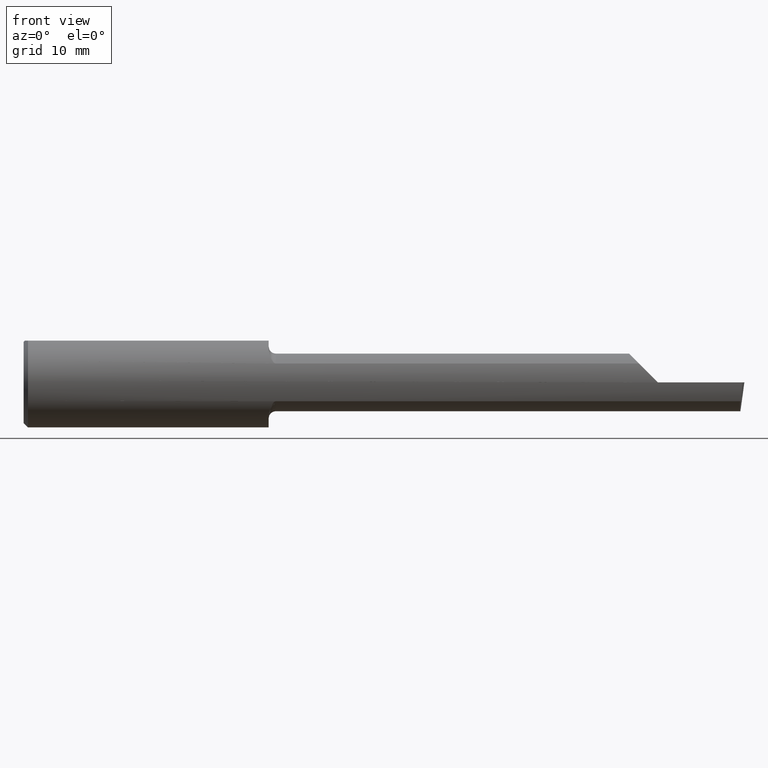
[diagram: clean part render]
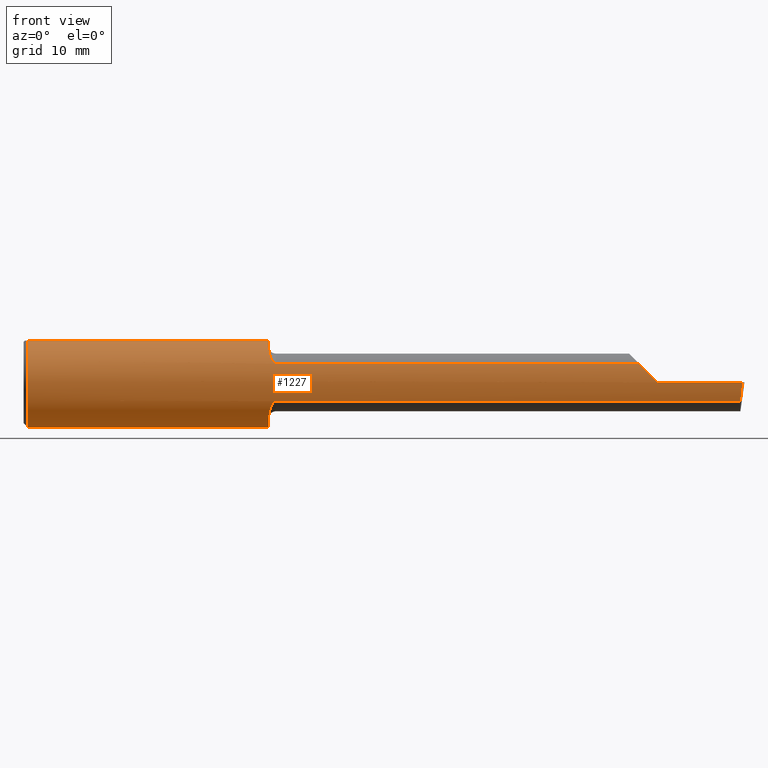
[diagram: same view with one face highlighted and labeled with its STEP entity id]
A machine part, front view. The second image highlights one B-rep face of the part: STEP entity #1227.
In plain terms, the highlighted cylindrical surface (partial cylindrical patch) has radius 3.9649 mm, axis along (-1, -0, -0).
Its self-contained STEP definition (entity closure, byte-faithful):
#29 = DIRECTION ( 'NONE',  ( 0.000000000000000000, 0.000000000000000000, -1.000000000000000000 ) ) ;
#32 = CARTESIAN_POINT ( 'NONE',  ( 21.62986463659906988, -3.000605534502818639, -2.611659286570838567 ) ) ;
#35 = CYLINDRICAL_SURFACE ( 'NONE', #1034, 3.964939999999999465 ) ;
#57 = EDGE_CURVE ( 'NONE', #655, #563, #652, .T. ) ;
#59 = CIRCLE ( 'NONE', #759, 3.964939999999999465 ) ;
#72 = VERTEX_POINT ( 'NONE', #176 ) ;
#73 = CARTESIAN_POINT ( 'NONE',  ( 63.50000000000000000, 1.462034237629201039, 3.685539999999999150 ) ) ;
#77 = VERTEX_POINT ( 'NONE', #200 ) ;
#82 = CARTESIAN_POINT ( 'NONE',  ( 39.11599999999999966, -3.599887049924355154, -1.661794942640913098 ) ) ;
#84 = VERTEX_POINT ( 'NONE', #558 ) ;
#88 = AXIS2_PLACEMENT_3D ( 'NONE', #378, #388, #294 ) ;
#89 = ORIENTED_EDGE ( 'NONE', *, *, #198, .T. ) ;
#111 = CARTESIAN_POINT ( 'NONE',  ( 21.59000000000000341, 1.462034237629201039, 3.685539999999999150 ) ) ;
#116 = CARTESIAN_POINT ( 'NONE',  ( 54.74300171423059425, -3.840973355998292149, 1.139538285769383430 ) ) ;
#124 = CARTESIAN_POINT ( 'NONE',  ( 55.88000000000000256, -3.964939186418879213, 0.002539999999978843903 ) ) ;
#142 = CARTESIAN_POINT ( 'NONE',  ( 63.34737096957299229, -3.964939999999998577, -1.734723475976807094E-15 ) ) ;
#144 = VERTEX_POINT ( 'NONE', #111 ) ;
#164 = ORIENTED_EDGE ( 'NONE', *, *, #1149, .F. ) ;
#168 = EDGE_CURVE ( 'NONE', #72, #563, #334, .T. ) ;
#176 = CARTESIAN_POINT ( 'NONE',  ( 21.59000000000000341, -2.519138184568832983, -3.061811883615197072 ) ) ;
#180 = CARTESIAN_POINT ( 'NONE',  ( 21.92013817098803585, -3.482913605042309957, 1.896197172601131298 ) ) ;
#183 = DIRECTION ( 'NONE',  ( -1.000000000000000000, -0.000000000000000000, -0.000000000000000000 ) ) ;
#187 = VERTEX_POINT ( 'NONE', #402 ) ;
#188 = CARTESIAN_POINT ( 'NONE',  ( 21.60086488926297932, -2.769437744535206303, 2.842117441750147577 ) ) ;
#189 = EDGE_CURVE ( 'NONE', #858, #459, #59, .T. ) ;
#194 = ORIENTED_EDGE ( 'NONE', *, *, #920, .F. ) ;
#195 = CARTESIAN_POINT ( 'NONE',  ( 21.59000000000000341, -2.647704699856520349, 2.956032420268236649 ) ) ;
#198 = EDGE_CURVE ( 'NONE', #368, #187, #1070, .T. ) ;
#200 = CARTESIAN_POINT ( 'NONE',  ( 21.59000000000000341, -2.519138184568832983, 3.061811883615197072 ) ) ;
#232 = EDGE_CURVE ( 'NONE', #84, #187, #1085, .T. ) ;
#243 = ORIENTED_EDGE ( 'NONE', *, *, #826, .T. ) ;
#254 = CIRCLE ( 'NONE', #949, 3.964939999999999465 ) ;
#264 = CARTESIAN_POINT ( 'NONE',  ( 63.50000000000000000, -3.964939999999998577, -8.673617379884035472E-16 ) ) ;
#294 = DIRECTION ( 'NONE',  ( 0.000000000000000000, 0.000000000000000000, 1.000000000000000000 ) ) ;
#298 = CARTESIAN_POINT ( 'NONE',  ( 22.14209333977408178, -3.593173028997537433, 1.676424154804802447 ) ) ;
#300 = DIRECTION ( 'NONE',  ( 1.000000000000000000, 0.000000000000000000, 0.000000000000000000 ) ) ;
#302 = VECTOR ( 'NONE', #183, 1000.000000000000000 ) ;
#329 = CARTESIAN_POINT ( 'NONE',  ( 54.22074505735906769, -3.599887049924353821, 1.661794942640917094 ) ) ;
#334 = B_SPLINE_CURVE_WITH_KNOTS ( 'NONE', 3,
 ( #974, #897, #32, #498, #884, #990, #1064, #875, #599, #423, #526, #983 ),
 .UNSPECIFIED., .F., .F.,
 ( 4, 2, 2, 2, 2, 4 ),
 ( 0.000000000000000000, 0.0009854161110805824755, 0.001478124166620874147, 0.001724478194391019766, 0.001847655208276092684, 0.001970832222161165818 ),
 .UNSPECIFIED. ) ;
#353 = VERTEX_POINT ( 'NONE', #142 ) ;
#368 = VERTEX_POINT ( 'NONE', #732 ) ;
#371 = EDGE_CURVE ( 'NONE', #655, #353, #861, .T. ) ;
#378 = CARTESIAN_POINT ( 'NONE',  ( 55.88000000000000256, 0.000000000000000000, 0.000000000000000000 ) ) ;
#388 = DIRECTION ( 'NONE',  ( -1.000000000000000000, -0.000000000000000000, -0.000000000000000000 ) ) ;
#402 = CARTESIAN_POINT ( 'NONE',  ( 54.22074505735906769, -3.599887049924353821, 1.661794942640917094 ) ) ;
#419 = VERTEX_POINT ( 'NONE', #1103 ) ;
#420 = DIRECTION ( 'NONE',  ( -1.000000000000000000, -0.000000000000000000, -0.000000000000000000 ) ) ;
#423 = CARTESIAN_POINT ( 'NONE',  ( 22.14223186210839955, -3.593202679785876708, -1.676360523546626791 ) ) ;
#427 = DIRECTION ( 'NONE',  ( 0.000000000000000000, 0.000000000000000000, 1.000000000000000000 ) ) ;
#433 = FACE_OUTER_BOUND ( 'NONE', #767, .T. ) ;
#453 = CARTESIAN_POINT ( 'NONE',  ( 63.22088425362750996, -3.841336638864744746, -1.138751319066783063 ) ) ;
#459 = VERTEX_POINT ( 'NONE', #1042 ) ;
#474 = CARTESIAN_POINT ( 'NONE',  ( 22.22500000000000497, -3.599887049924355154, 1.661794942640912653 ) ) ;
#498 = CARTESIAN_POINT ( 'NONE',  ( 21.75735470549299677, -3.287133544512903072, -2.222929241776085085 ) ) ;
#504 = CARTESIAN_POINT ( 'NONE',  ( 0.3809999999999924558, 0.000000000000000000, 0.000000000000000000 ) ) ;
#511 = CARTESIAN_POINT ( 'NONE',  ( 63.50000000000000000, 0.000000000000000000, 0.000000000000000000 ) ) ;
#515 = ORIENTED_EDGE ( 'NONE', *, *, #854, .T. ) ;
#525 = DIRECTION ( 'NONE',  ( 1.000000000000000000, 0.000000000000000000, 0.000000000000000000 ) ) ;
#526 = CARTESIAN_POINT ( 'NONE',  ( 22.18273214518531233, -3.599887049924846316, -1.661794942640280492 ) ) ;
#555 = CIRCLE ( 'NONE', #88, 3.964939999999999465 ) ;
#558 = CARTESIAN_POINT ( 'NONE',  ( 22.22500000000000497, -3.599887049924355154, 1.661794942640912653 ) ) ;
#563 = VERTEX_POINT ( 'NONE', #664 ) ;
#566 = CARTESIAN_POINT ( 'NONE',  ( 21.64234523350258854, -2.993776095290413330, 2.604749827684863739 ) ) ;
#573 = CARTESIAN_POINT ( 'NONE',  ( 21.59000000000000341, -2.519138184568832983, 3.061811883615197072 ) ) ;
#586 = CARTESIAN_POINT ( 'NONE',  ( 21.67278457167213190, -3.097160976341655658, 2.480706191382077819 ) ) ;
#599 = CARTESIAN_POINT ( 'NONE',  ( 22.07266131581567237, -3.573289969088939255, -1.718397189166198880 ) ) ;
#605 = EDGE_CURVE ( 'NONE', #419, #368, #555, .T. ) ;
#627 = CARTESIAN_POINT ( 'NONE',  ( 0.3809999999999924558, 0.000000000000000000, 0.000000000000000000 ) ) ;
#644 = CARTESIAN_POINT ( 'NONE',  ( 0.3809999999999924558, -1.462034237629201039, 3.685539999999999150 ) ) ;
#652 = LINE ( 'NONE', #82, #302 ) ;
#655 = VERTEX_POINT ( 'NONE', #1069 ) ;
#656 = CARTESIAN_POINT ( 'NONE',  ( 22.07257322604091598, -3.573254725572614365, 1.718470549442531192 ) ) ;
#663 = CARTESIAN_POINT ( 'NONE',  ( 21.75726499476741083, -3.286836667701077186, 2.223289014318797996 ) ) ;
#664 = CARTESIAN_POINT ( 'NONE',  ( 22.22500000000000497, -3.599887049924355154, -1.661794942640913098 ) ) ;
#669 = CIRCLE ( 'NONE', #773, 3.964939999999999465 ) ;
#691 = DIRECTION ( 'NONE',  ( 1.000000000000000000, -0.000000000000000000, -0.000000000000000000 ) ) ;
#695 = DIRECTION ( 'NONE',  ( -1.000000000000000000, -0.000000000000000000, -0.000000000000000000 ) ) ;
#710 = DIRECTION ( 'NONE',  ( 1.000000000000000000, 0.000000000000000000, 0.000000000000000000 ) ) ;
#732 = CARTESIAN_POINT ( 'NONE',  ( 55.88000000000000256, -3.964939186418879213, 0.002539999999978843903 ) ) ;
#733 = ORIENTED_EDGE ( 'NONE', *, *, #371, .T. ) ;
#735 = VECTOR ( 'NONE', #300, 1000.000000000000000 ) ;
#736 = DIRECTION ( 'NONE',  ( -1.000000000000000000, -0.000000000000000000, -0.000000000000000000 ) ) ;
#741 = B_SPLINE_CURVE_WITH_KNOTS ( 'NONE', 3,
 ( #474, #1151, #298, #656, #1033, #953, #180, #852, #663, #586, #566, #188, #195, #573 ),
 .UNSPECIFIED., .F., .F.,
 ( 4, 2, 2, 2, 2, 2, 4 ),
 ( 0.000000000000000000, 0.0001252016961403291614, 0.0002504033922806583228, 0.0005008067845613099235, 0.001001613569122608138, 0.001502420353683906135, 0.002003227138245204132 ),
 .UNSPECIFIED. ) ;
#742 = LINE ( 'NONE', #264, #1043 ) ;
#750 = ORIENTED_EDGE ( 'NONE', *, *, #57, .F. ) ;
#759 = AXIS2_PLACEMENT_3D ( 'NONE', #504, #691, #903 ) ;
#767 = EDGE_LOOP ( 'NONE', ( #750, #733, #243, #1169, #89, #1150, #1176, #194, #886, #957, #1128, #515, #164, #1007 ) ) ;
#773 = AXIS2_PLACEMENT_3D ( 'NONE', #1193, #710, #1023 ) ;
#776 = EDGE_CURVE ( 'NONE', #459, #933, #254, .T. ) ;
#778 = CARTESIAN_POINT ( 'NONE',  ( 39.11599999999999966, -3.599887049924355154, 1.661794942640912653 ) ) ;
#807 = CARTESIAN_POINT ( 'NONE',  ( 63.16765444560877540, -3.599887049924355598, -1.661794942640913542 ) ) ;
#826 = EDGE_CURVE ( 'NONE', #353, #419, #742, .T. ) ;
#828 = CARTESIAN_POINT ( 'NONE',  ( 63.34737096957299229, -3.964939999999998577, -1.734723475976807094E-15 ) ) ;
#852 = CARTESIAN_POINT ( 'NONE',  ( 21.81039366075620123, -3.372877125526299480, 2.089606631779967749 ) ) ;
#854 = EDGE_CURVE ( 'NONE', #933, #144, #1027, .T. ) ;
#858 = VERTEX_POINT ( 'NONE', #644 ) ;
#861 =( BOUNDED_CURVE ( )  B_SPLINE_CURVE ( 3, ( #807, #453, #931, #828 ),
 .UNSPECIFIED., .F., .T. ) 
 B_SPLINE_CURVE_WITH_KNOTS ( ( 4, 4 ),
 ( 0.9109982351287744251, 1.343476681901648373 ),
 .UNSPECIFIED. ) 
 CURVE ( )  GEOMETRIC_REPRESENTATION_ITEM ( )  RATIONAL_B_SPLINE_CURVE ( ( 1.000000000000000000, 0.9844741726620818145, 0.9844741726620818145, 1.000000000000000000 ) ) 
 REPRESENTATION_ITEM ( '' )  );
#875 = CARTESIAN_POINT ( 'NONE',  ( 22.04331072668534830, -3.560555847044616140, -1.744768704123050629 ) ) ;
#879 = CARTESIAN_POINT ( 'NONE',  ( 21.59000000000000341, -1.462034237629201483, 3.685539999999999150 ) ) ;
#884 = CARTESIAN_POINT ( 'NONE',  ( 21.81048060739426475, -3.373116484278351646, -2.089258773282959059 ) ) ;
#886 = ORIENTED_EDGE ( 'NONE', *, *, #1188, .T. ) ;
#893 = VECTOR ( 'NONE', #525, 1000.000000000000000 ) ;
#897 = CARTESIAN_POINT ( 'NONE',  ( 21.59000000000000696, -2.776463605467542894, -2.850094665743279521 ) ) ;
#903 = DIRECTION ( 'NONE',  ( 0.000000000000000000, 0.000000000000000000, -1.000000000000000000 ) ) ;
#920 = EDGE_CURVE ( 'NONE', #961, #77, #669, .T. ) ;
#929 = AXIS2_PLACEMENT_3D ( 'NONE', #1170, #987, #29 ) ;
#931 = CARTESIAN_POINT ( 'NONE',  ( 63.28173451222403401, -3.964939999999998577, -0.5760837926561074296 ) ) ;
#933 = VERTEX_POINT ( 'NONE', #964 ) ;
#939 = DIRECTION ( 'NONE',  ( 1.000000000000000000, -0.000000000000000000, -0.000000000000000000 ) ) ;
#949 = AXIS2_PLACEMENT_3D ( 'NONE', #627, #939, #1000 ) ;
#953 = CARTESIAN_POINT ( 'NONE',  ( 21.96226220547250563, -3.517214224323105043, 1.831405522215773685 ) ) ;
#957 = ORIENTED_EDGE ( 'NONE', *, *, #189, .T. ) ;
#961 = VERTEX_POINT ( 'NONE', #879 ) ;
#964 = CARTESIAN_POINT ( 'NONE',  ( 0.3809999999999924558, 1.462034237629201039, 3.685539999999999150 ) ) ;
#966 = CARTESIAN_POINT ( 'NONE',  ( 55.30478309583587304, -3.964570693771735765, 0.5777569041641154035 ) ) ;
#974 = CARTESIAN_POINT ( 'NONE',  ( 21.59000000000000341, -2.519138184568832983, -3.061811883615197072 ) ) ;
#983 = CARTESIAN_POINT ( 'NONE',  ( 22.22500000000000497, -3.599887049924355154, -1.661794942640913098 ) ) ;
#987 = DIRECTION ( 'NONE',  ( 1.000000000000000000, 0.000000000000000000, 0.000000000000000000 ) ) ;
#990 = CARTESIAN_POINT ( 'NONE',  ( 21.92080737346493891, -3.483507757590341480, -1.895116055831529200 ) ) ;
#1000 = DIRECTION ( 'NONE',  ( 0.000000000000000000, 0.000000000000000000, -1.000000000000000000 ) ) ;
#1007 = ORIENTED_EDGE ( 'NONE', *, *, #168, .T. ) ;
#1023 = DIRECTION ( 'NONE',  ( 0.000000000000000000, 0.000000000000000000, -1.000000000000000000 ) ) ;
#1027 = LINE ( 'NONE', #73, #893 ) ;
#1033 = CARTESIAN_POINT ( 'NONE',  ( 22.04245480245961986, -3.560155007699746577, 1.745585502201545847 ) ) ;
#1034 = AXIS2_PLACEMENT_3D ( 'NONE', #511, #695, #427 ) ;
#1042 = CARTESIAN_POINT ( 'NONE',  ( 0.3809999999999924558, 0.000000000000000000, -3.964939999999999465 ) ) ;
#1043 = VECTOR ( 'NONE', #736, 1000.000000000000000 ) ;
#1056 = EDGE_CURVE ( 'NONE', #84, #77, #741, .T. ) ;
#1064 = CARTESIAN_POINT ( 'NONE',  ( 21.96270401922562954, -3.517563494622018894, -1.830738248287723469 ) ) ;
#1067 = CARTESIAN_POINT ( 'NONE',  ( 63.50000000000000000, -1.462034237629201039, 3.685539999999999150 ) ) ;
#1069 = CARTESIAN_POINT ( 'NONE',  ( 63.16765444560877540, -3.599887049924355598, -1.661794942640913542 ) ) ;
#1070 =( BOUNDED_CURVE ( )  B_SPLINE_CURVE ( 3, ( #124, #966, #116, #329 ),
 .UNSPECIFIED., .F., .T. ) 
 B_SPLINE_CURVE_WITH_KNOTS ( ( 4, 4 ),
 ( 4.713029595418891660, 5.144867427157565842 ),
 .UNSPECIFIED. ) 
 CURVE ( )  GEOMETRIC_REPRESENTATION_ITEM ( )  RATIONAL_B_SPLINE_CURVE ( ( 1.000000000000000000, 0.9845199556095911575, 0.9845199556095911575, 1.000000000000000000 ) ) 
 REPRESENTATION_ITEM ( '' )  );
#1085 = LINE ( 'NONE', #778, #735 ) ;
#1096 = LINE ( 'NONE', #1067, #1107 ) ;
#1103 = CARTESIAN_POINT ( 'NONE',  ( 55.88000000000000256, -3.964939999999999465, -8.673617379884035472E-16 ) ) ;
#1107 = VECTOR ( 'NONE', #420, 1000.000000000000000 ) ;
#1128 = ORIENTED_EDGE ( 'NONE', *, *, #776, .T. ) ;
#1145 = CIRCLE ( 'NONE', #929, 3.964939999999999465 ) ;
#1149 = EDGE_CURVE ( 'NONE', #72, #144, #1145, .T. ) ;
#1150 = ORIENTED_EDGE ( 'NONE', *, *, #232, .F. ) ;
#1151 = CARTESIAN_POINT ( 'NONE',  ( 22.18244100483411074, -3.599887049924355154, 1.661794942640913098 ) ) ;
#1169 = ORIENTED_EDGE ( 'NONE', *, *, #605, .T. ) ;
#1170 = CARTESIAN_POINT ( 'NONE',  ( 21.59000000000000341, 0.000000000000000000, 0.000000000000000000 ) ) ;
#1176 = ORIENTED_EDGE ( 'NONE', *, *, #1056, .T. ) ;
#1188 = EDGE_CURVE ( 'NONE', #961, #858, #1096, .T. ) ;
#1193 = CARTESIAN_POINT ( 'NONE',  ( 21.59000000000000341, 0.000000000000000000, 0.000000000000000000 ) ) ;
#1227 = ADVANCED_FACE ( 'NONE', ( #433 ), #35, .T. ) ;